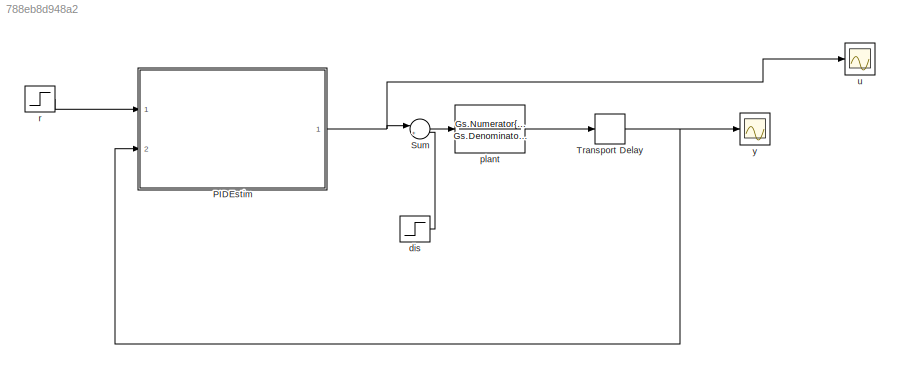
MODEL slx_788eb8d948a2
KIND model
CONFIG AbsTol = auto
CONFIG EnableMultiTasking = off
CONFIG FixedStep = auto
CONFIG MaxStep = auto
CONFIG MinStep = auto
CONFIG RelTol = 1e-3
CONFIG SampleTimeConstraint = Unconstrained
CONFIG Solver = VariableStepAuto
CONFIG SolverName = VariableStepAuto
CONFIG StartTime = 0.0
CONFIG StopTime = tSim
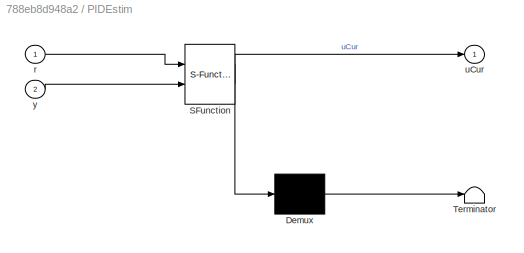
BLOCK [SubSystem] PIDEstim
  ErrorFcn = Stateflow.Translate.translate
  PermitHierarchicalResolution = ExplicitOnly
  Ports = [2, 1]
  RequestExecContextInheritance = off
  SFBlockType = MATLAB Function
  TreatAsAtomicUnit = on
BLOCK [Demux] PIDEstim/ Demux 
  Outputs = 1
  Ports = [1, 1]
BLOCK [S-Function] PIDEstim/ SFunction 
  EnableBusSupport = on
  FunctionName = sf_sfun
  Parameters = K1,K2,K3,a0,a1,alpha3,deltat,tauf,umax,umin
  PortCounts = [2 2]
  Ports = [2, 2]
  SFcnIsStateOwnerBlock = off
  SFunctionDeploymentMode = off
  Tag = Stateflow S-Function 2
BLOCK [Terminator] PIDEstim/ Terminator 
BLOCK [Inport] PIDEstim/r
  IconDisplay = Port number
BLOCK [Outport] PIDEstim/uCur
  IconDisplay = Port number
BLOCK [Inport] PIDEstim/y
  IconDisplay = Port number
  Port = 2
BLOCK [Sum] Sum
  IconShape = round
  InputSameDT = off
  Inputs = |++
  OutDataTypeStr = Inherit: Inherit via internal rule
  Ports = [2, 1]
  SaturateOnIntegerOverflow = off
BLOCK [TransportDelay] Transport Delay
  DelayTime = delay
  Ports = [1, 1]
BLOCK [Step] dis
  After = dAmp
  SampleTime = 0
  Time = tSim/2
BLOCK [TransferFcn] plant
  Denominator = Gs.Denominator{1,1}
  Numerator = Gs.Numerator{1,1}
BLOCK [Step] r
  SampleTime = 0
  Time = 0
BLOCK [Scope] u
  Floating = off
  NumInputPorts = 1
  Ports = [1]
  ScopeSpecificationString = Simulink.scopes.TimeScopeBlockCfg('CurrentConfiguration', extmgr.ConfigurationSet(extmgr.Configuration('Core','General UI',true),extmgr.Configuration('Core','Source UI',true),extmgr.Configuration('Sources','WiredSimulink',true,'DataLoggingVariableName','u','DataLogging',true,'DataLoggingSaveFormat','StructureWithTime'),extmgr.Configuration('Visuals','Time Domain',true,'SerializedDisplays',{struct(...<+1477ch>
BLOCK [Scope] y 
  Floating = off
  NumInputPorts = 1
  Ports = [1]
  ScopeSpecificationString = Simulink.scopes.TimeScopeBlockCfg('CurrentConfiguration', extmgr.ConfigurationSet(extmgr.Configuration('Core','General UI',true),extmgr.Configuration('Core','Source UI',true),extmgr.Configuration('Sources','WiredSimulink',true,'DataLoggingVariableName','y','DataLogging',true,'DataLoggingSaveFormat','StructureWithTime'),extmgr.Configuration('Visuals','Time Domain',true,'SerializedDisplays',{struct(...<+1484ch>
NET PIDEstim:1 -> Sum:1, u:1
LINE Sum:1 -> plant:1
NET Transport Delay:1 -> PIDEstim:2, y :1
LINE dis:1 -> Sum:2
LINE plant:1 -> Transport Delay:1
LINE r:1 -> PIDEstim:1
note: NET lines group one-source signal fan-out (src -> all destinations, sorted); 1:1 wires keep LINE
CHART PIDEstim states=1 transitions=1
  STATE_LABEL 'eML_blk_kernel()'
  STATE_LABEL 'SCRIPT:\nfunction uCur = PIDEstFD(r,y,K1,K2,K3,tauf,alpha3,a1,a0,deltat,umin,umax)\npersistent zhat\nif isempty(zhat)\n    zhat=0;\nend\npersistent ydfpast\nif isempty(ydfpast)\n    ydfpast=0;\nend\npersistent ypast\nif isempty(ypast)\n    ypast=0;\nend\n\n\n% ndmax=100; \n% persistent(udelay)\n% if isempty(udelay)\n%     udelay=zeros(1,ndmax);\n% end   \n%estimator based MATLAB function with anti-windup\nydf=tauf/(tau...<+293ch>'
